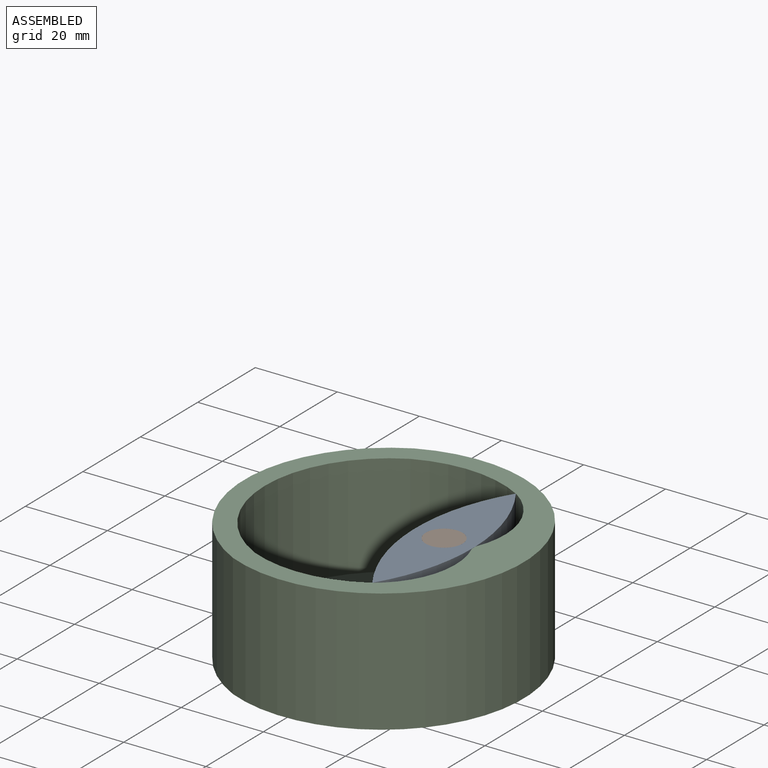
[diagram: assembled view]
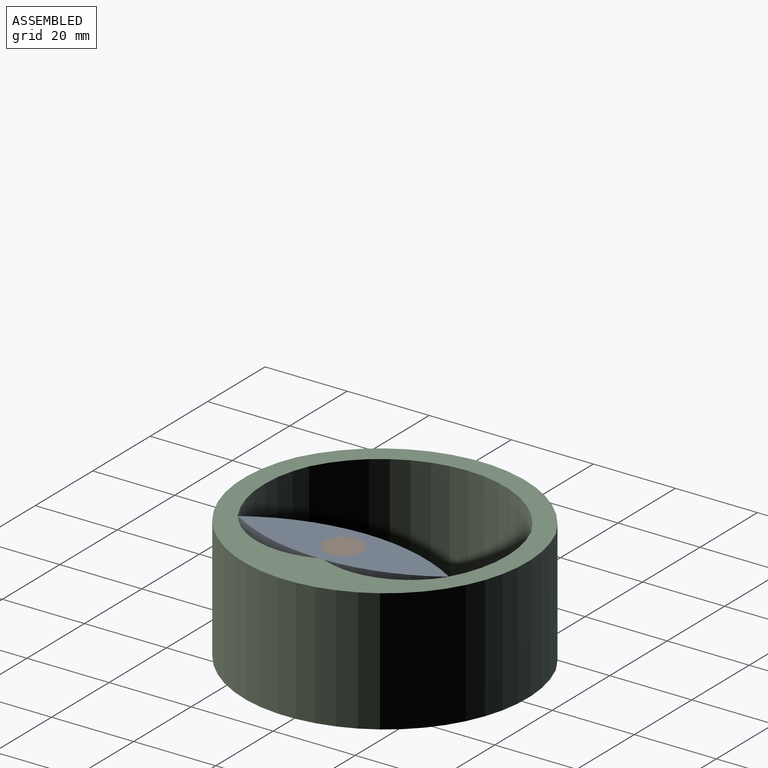
[diagram: assembled view, second angle]
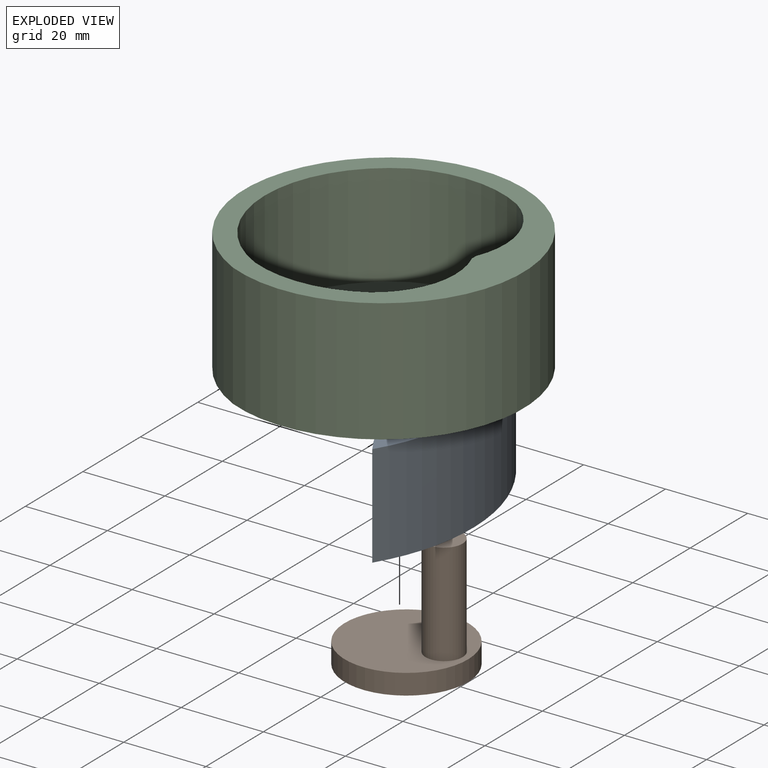
[diagram: exploded view]
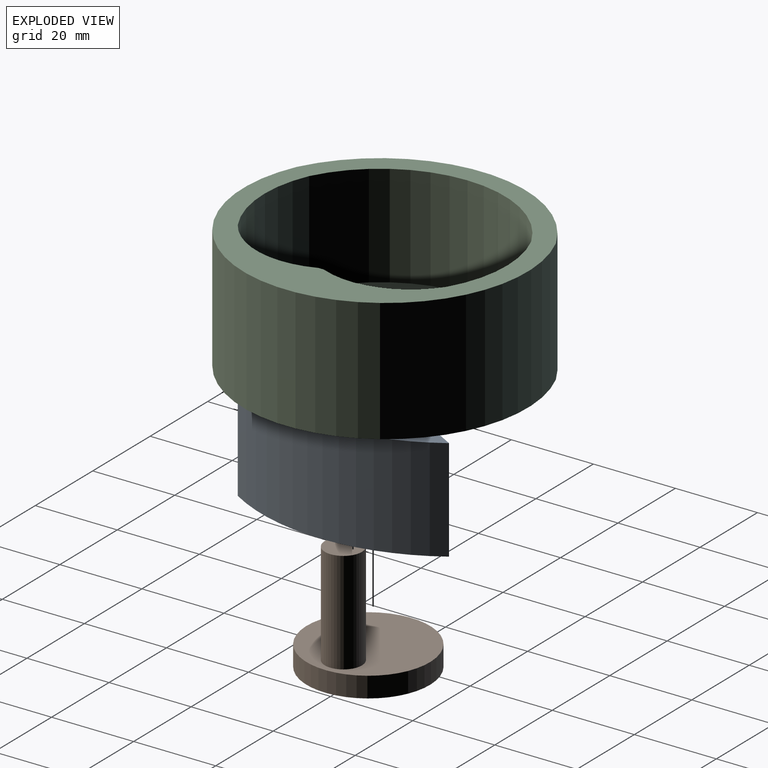
[diagram: exploded view, second angle]
ASSEMBLY  parts=3 mates=2
PART A: 7 faces, bbox 51x14.8x25 mm
  f0: cylinder r=37.17mm len=25mm, axis (0,0,-1), area 0mm2, adj f1,f3,f4,f5
  f1: cylinder r=37.17mm len=25mm, axis (0,0,-1), area 0mm2, adj f0,f3,f4,f6
  f2: cylinder r=4.51mm len=25mm, axis (0,0,-1), area 708.2mm2, adj f3,f4
  f3: plane 51x14.8mm, normal (0,0,1), area 447.6mm2, adj f0,f1,f2,f5,f6
  f4: plane 51x14.8mm, normal (0,0,-1), area 447.6mm2, adj f0,f1,f2,f5,f6
  f5: cylinder r=47.65mm len=51mm, axis (0,0,-1), area 1345.4mm2, adj f0,f3,f4,f6
  f6: cylinder r=47.65mm len=51mm, axis (0,0,-1), area 1345.4mm2, adj f1,f3,f4,f5
PART B: 5 faces, bbox 30x30x30 mm
  f0: plane 30.03x30.03mm, normal (0,0,1), area 644.5mm2, adj f1,f4
  f1: cylinder r=15.02mm len=30.03mm, axis (0,0,1), area 471.7mm2, adj f0,f2
  f2: plane 30.03x30.03mm, normal (0,0,-1), area 708.3mm2, adj f1
  f3: plane 9.02x9.02mm, normal (0,0,1), area 63.9mm2, adj f4
  f4: cylinder r=4.51mm len=25mm, axis (0,0,-1), area 708.2mm2, adj f0,f3
PART C: 13 faces, bbox 68.1x69.2x30 mm
  f0: cylinder r=29.6mm len=27.05mm, axis (0,0,1), area 703.5mm2, adj f3,f6,f7,f9
  f1: cylinder r=29.6mm len=27.05mm, axis (0,0,1), area 703.5mm2, adj f3,f6,f7,f12
  f2: plane 69.2x68.1mm, normal (0,0,-1), area 2996.2mm2, adj f4,f5,f8
  f3: plane 59.2x52.55mm, normal (0,0,1), area 1828.3mm2, adj f0,f1,f7,f8,f9,f10,f11,f12
  f4: cylinder r=34.6mm len=69.2mm, axis (0,0,1), area 4137.6mm2, adj f2,f5,f6
  f5: cylinder r=35.43mm len=63.11mm, axis (0,0,1), area 2335.9mm2, adj f2,f4,f6
  f6: plane 69.2x68.1mm, normal (0,0,1), area 1167.8mm2, adj f0,f1,f4,f5,f7,f9,f10,f11
  f7: cylinder r=30.43mm len=54.09mm, axis (0,0,1), area 1665.7mm2, adj f0,f1,f3,f6
  f8: cylinder r=15.02mm len=30.03mm, axis (0,0,1), area 471.7mm2, adj f2,f3
  f9: cylinder r=20.36mm len=25mm, axis (0,0,-1), area 698mm2, adj f0,f3,f6,f10
  f10: cylinder r=1.13mm len=25mm, axis (0,0,-1), area 21.2mm2, adj f3,f6,f9,f11
  f11: cylinder r=1.13mm len=25mm, axis (0,0,-1), area 21.2mm2, adj f3,f6,f10,f12
  f12: cylinder r=20.36mm len=25mm, axis (0,0,-1), area 698mm2, adj f1,f3,f6,f11
PLACE A rot(axis=(0,0,1),90.8deg) t=(15.64,18.27,5)mm
PLACE B rot(axis=(0,0,-1),178.5deg) t=(-2.14,-0.24,5)mm
PLACE C t=(15.89,0,5)mm
MATE revolute B.f1 <-> C.f8  axis (0,0,-1) through (6.87,0,0)mm
MATE revolute B.f4 <-> A.f2  axis (0,0,1) through (15.88,0.24,30)mm
